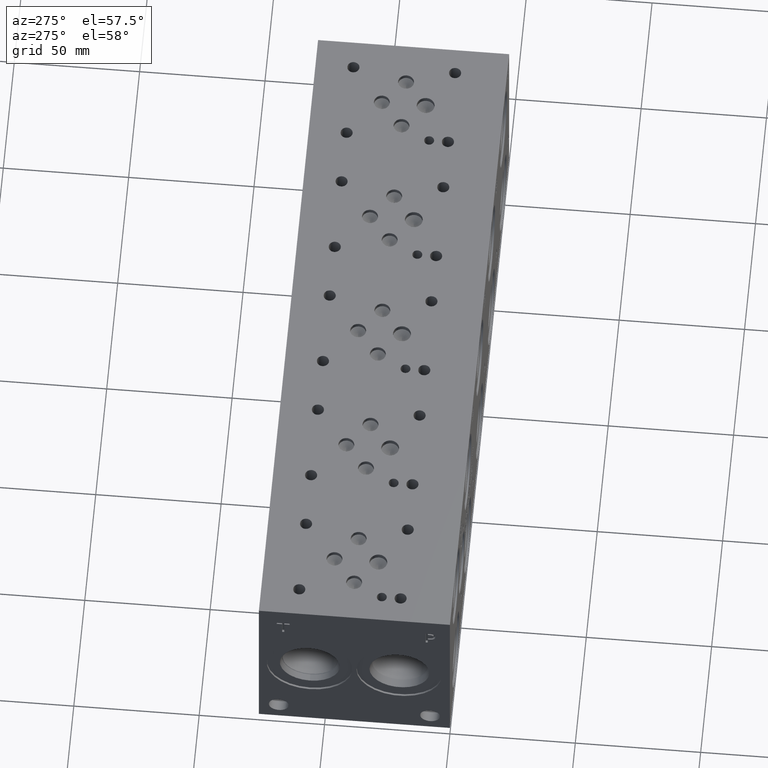
[diagram: clean part render]
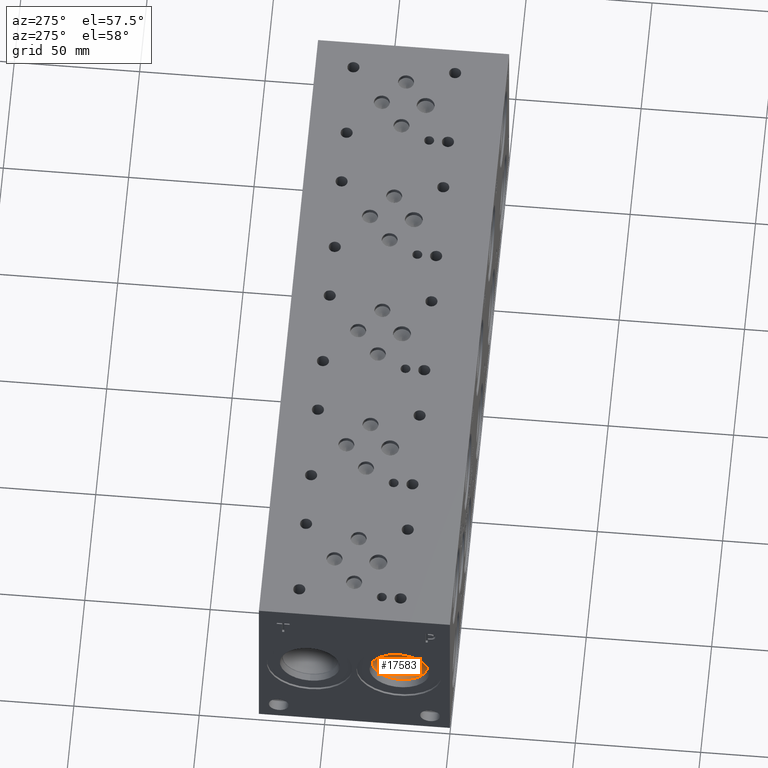
[diagram: same view with one face highlighted and labeled with its STEP entity id]
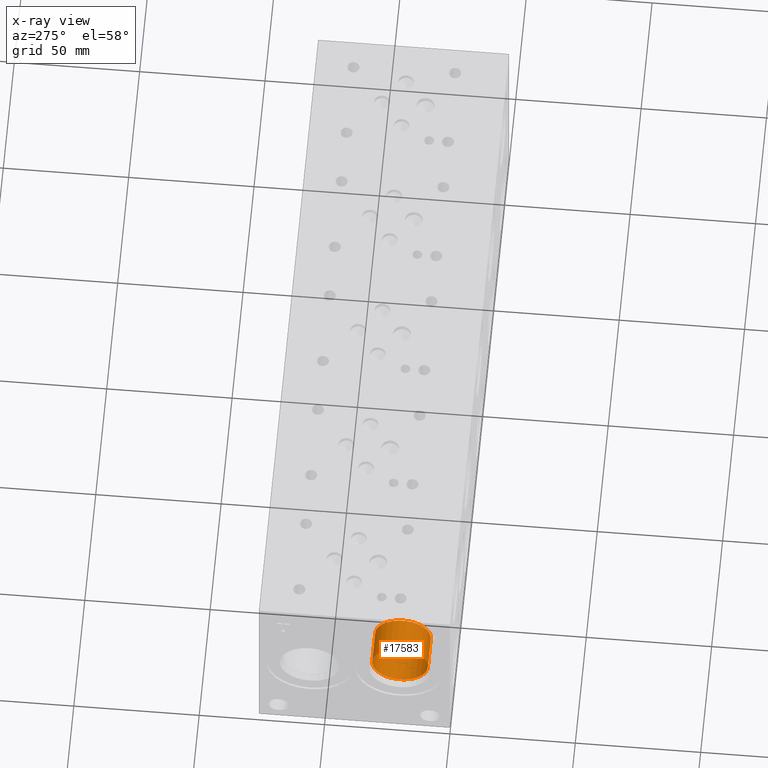
[diagram: x-ray of the same camera — body ghosted, the highlighted face saturated]
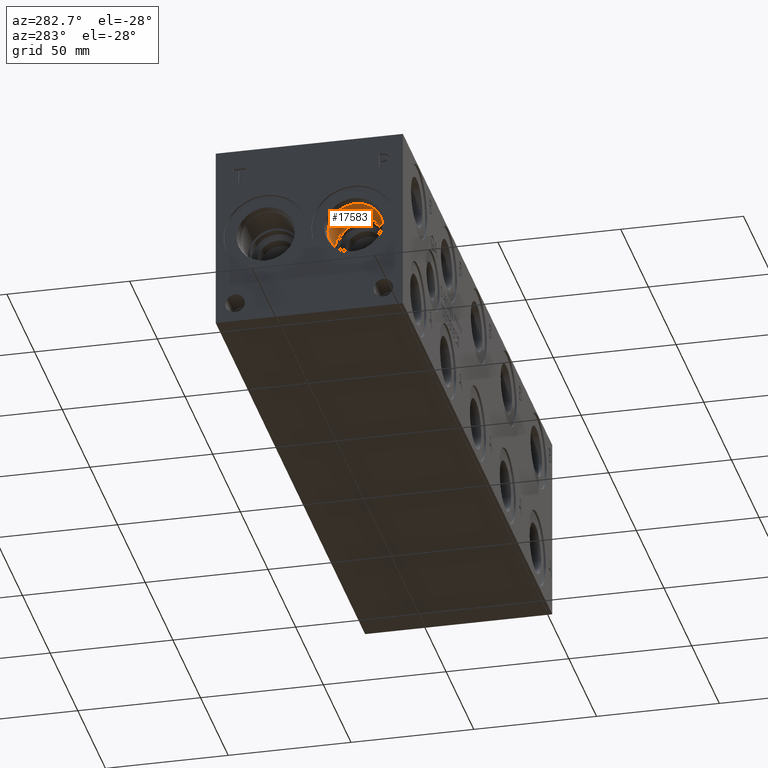
[diagram: same view with one face highlighted and labeled with its STEP entity id]
A machine part, auxiliary view. The second image highlights one B-rep face of the part: STEP entity #17583.
The next image is the same camera in x-ray: the body ghosted, the highlighted face saturated — about 0% of this face is hidden behind the body in this view.
A second angle (auxiliary view) of the same face is appended — the face is thin or edge-on in the first view.
In plain terms, the highlighted cylindrical surface (bore or boss wall) has radius 11.1125 mm, axis along (-1, 0, 0).
Its self-contained STEP definition (entity closure, byte-faithful):
#202=CYLINDRICAL_SURFACE('',#18599,11.1125);
#564=CIRCLE('',#18596,11.1125);
#565=CIRCLE('',#18597,11.1125);
#567=CIRCLE('',#18600,11.1125);
#2426=FACE_OUTER_BOUND('',#3461,.T.);
#3461=EDGE_LOOP('',(#14955,#14956,#14957,#14958,#14959));
#5039=LINE('',#30096,#6522);
#6522=VECTOR('',#22074,11.1125);
#8055=VERTEX_POINT('',#30087);
#8056=VERTEX_POINT('',#30088);
#8058=VERTEX_POINT('',#30094);
#10443=EDGE_CURVE('',#8055,#8056,#564,.T.);
#10444=EDGE_CURVE('',#8056,#8055,#565,.T.);
#10446=EDGE_CURVE('',#8058,#8058,#567,.T.);
#10447=EDGE_CURVE('',#8058,#8056,#5039,.T.);
#14955=ORIENTED_EDGE('',*,*,#10446,.F.);
#14956=ORIENTED_EDGE('',*,*,#10447,.T.);
#14957=ORIENTED_EDGE('',*,*,#10443,.F.);
#14958=ORIENTED_EDGE('',*,*,#10444,.F.);
#14959=ORIENTED_EDGE('',*,*,#10447,.F.);
#17583=ADVANCED_FACE('',(#2426),#202,.F.);
#18596=AXIS2_PLACEMENT_3D('',#30089,#22064,#22065);
#18597=AXIS2_PLACEMENT_3D('',#30090,#22066,#22067);
#18599=AXIS2_PLACEMENT_3D('',#30093,#22070,#22071);
#18600=AXIS2_PLACEMENT_3D('',#30095,#22072,#22073);
#22064=DIRECTION('center_axis',(-1.,0.,0.));
#22065=DIRECTION('ref_axis',(0.,1.,0.));
#22066=DIRECTION('center_axis',(-1.,0.,0.));
#22067=DIRECTION('ref_axis',(0.,1.,0.));
#22070=DIRECTION('center_axis',(-1.,0.,0.));
#22071=DIRECTION('ref_axis',(0.,1.,0.));
#22072=DIRECTION('center_axis',(1.,0.,0.));
#22073=DIRECTION('ref_axis',(0.,1.,0.));
#22074=DIRECTION('',(1.,0.,0.));
#30087=CARTESIAN_POINT('',(17.4498,31.3563,38.1));
#30088=CARTESIAN_POINT('',(17.4498,9.1313,38.1));
#30089=CARTESIAN_POINT('Origin',(17.4498,20.2438,38.1));
#30090=CARTESIAN_POINT('Origin',(17.4498,20.2438,38.1));
#30093=CARTESIAN_POINT('Origin',(8.7249,20.2438,38.1));
#30094=CARTESIAN_POINT('',(3.91738498690423,9.1313,38.1));
#30095=CARTESIAN_POINT('Origin',(3.91738498690423,20.2438,38.1));
#30096=CARTESIAN_POINT('',(8.7249,9.1313,38.1));